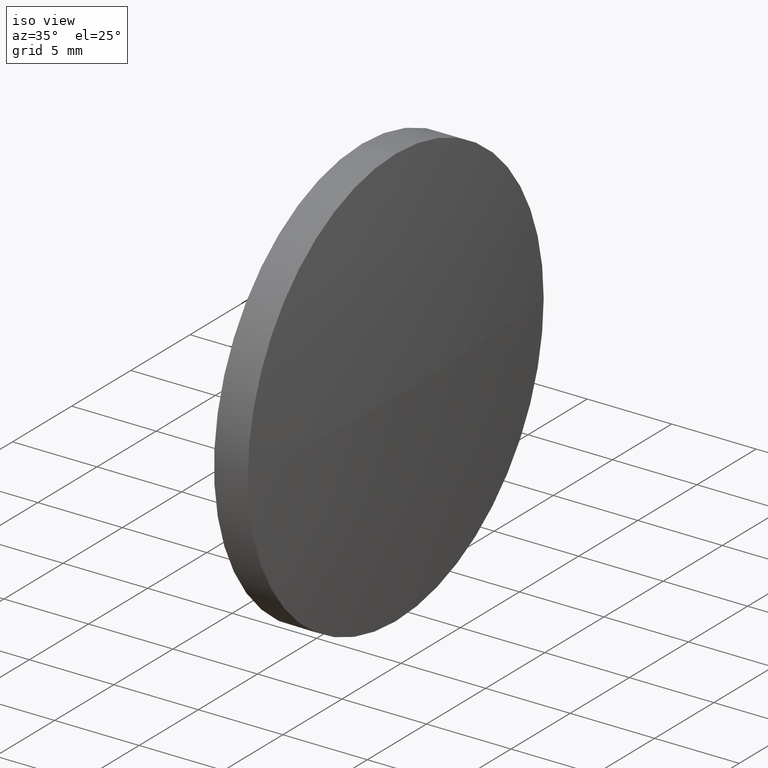
[diagram: clean part render]
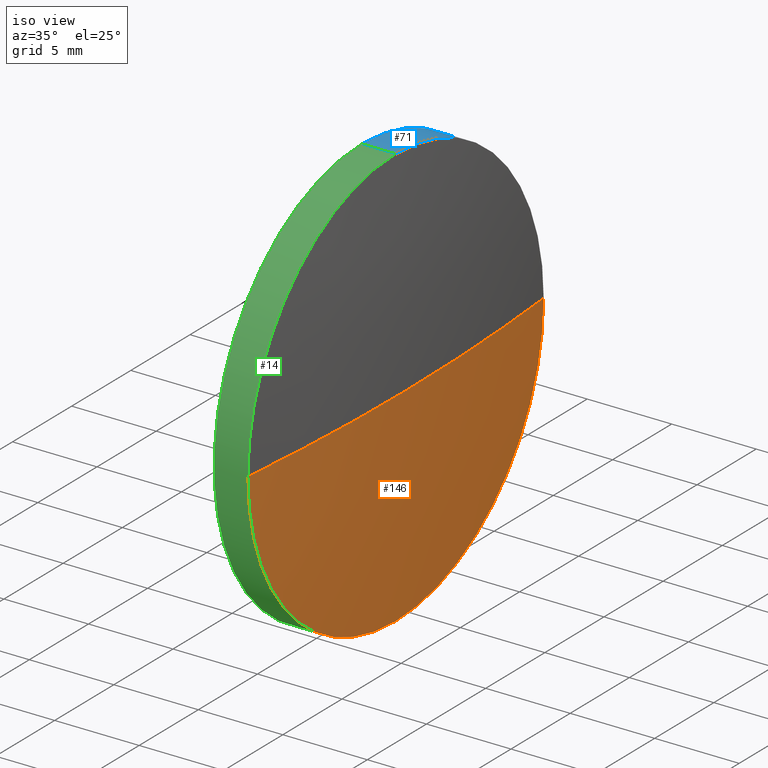
[diagram: same view with three faces highlighted in distinct colors, each labeled with its STEP entity id]
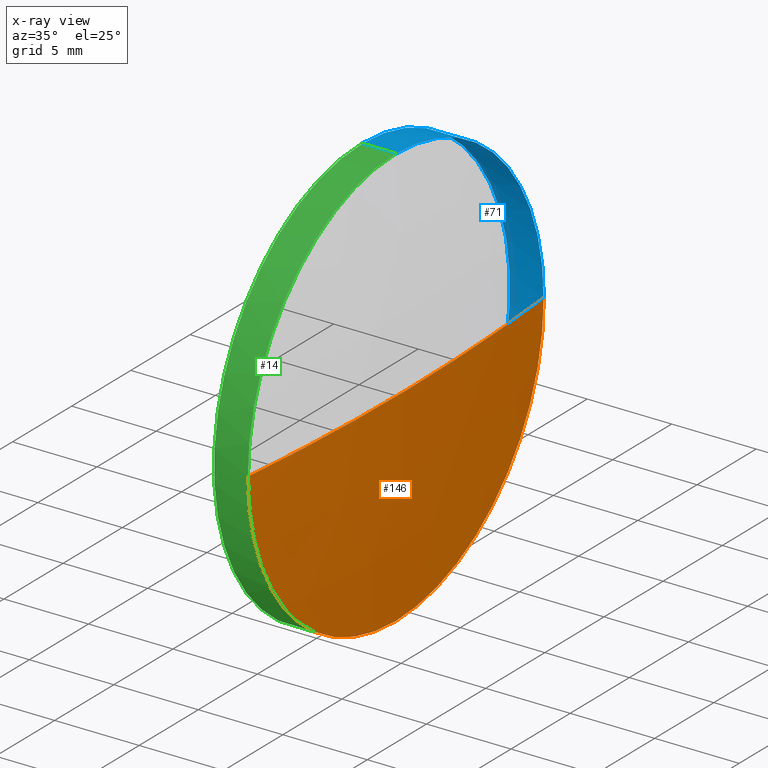
[diagram: x-ray of the same camera — body ghosted, the three highlighted faces saturated]
A machine part, iso view with three faces highlighted in distinct colors.
The next image is the same camera in x-ray (body ghosted, the three faces saturated) — at least one of them is partly hidden behind the body in this view.
Their STEP definitions:

[orange] entity #146 — the highlighted spherical surface has radius 128.379 mm.
#4 = VERTEX_POINT ( 'NONE', #147 ) ;
#5 = CARTESIAN_POINT ( 'NONE',  ( 432.6734626565939800, 55.36771829137188700, -1.530808498934185000E-015 ) ) ;
#9 = AXIS2_PLACEMENT_3D ( 'NONE', #70, #13, #59 ) ;
#11 = CIRCLE ( 'NONE', #161, 12.49999999999999600 ) ;
#13 = DIRECTION ( 'NONE',  ( 0.0000000000000000000, 1.224646799147353200E-016, -1.000000000000000000 ) ) ;
#17 = CARTESIAN_POINT ( 'NONE',  ( 432.6734626565939800, 67.86771829137194300, 0.0000000000000000000 ) ) ;
#22 = ORIENTED_EDGE ( 'NONE', *, *, #49, .T. ) ;
#27 = EDGE_LOOP ( 'NONE', ( #157, #22, #143, #37 ) ) ;
#28 = CARTESIAN_POINT ( 'NONE',  ( 433.2834626565940000, 67.86771829137184400, 0.0000000000000000000 ) ) ;
#32 = VERTEX_POINT ( 'NONE', #28 ) ;
#36 = DIRECTION ( 'NONE',  ( -1.000000000000000000, -0.0000000000000000000, -0.0000000000000000000 ) ) ;
#37 = ORIENTED_EDGE ( 'NONE', *, *, #163, .F. ) ;
#38 = SPHERICAL_SURFACE ( 'NONE', #148, 128.3787704918034600 ) ;
#41 = EDGE_CURVE ( 'NONE', #32, #4, #94, .T. ) ;
#49 = EDGE_CURVE ( 'NONE', #32, #118, #104, .T. ) ;
#53 = CIRCLE ( 'NONE', #55, 12.49999999999999600 ) ;
#55 = AXIS2_PLACEMENT_3D ( 'NONE', #17, #36, #64 ) ;
#59 = DIRECTION ( 'NONE',  ( 0.0000000000000000000, 1.000000000000000000, 1.224646799147353200E-016 ) ) ;
#64 = DIRECTION ( 'NONE',  ( 0.0000000000000000000, 0.0000000000000000000, 1.000000000000000000 ) ) ;
#67 = EDGE_CURVE ( 'NONE', #122, #118, #11, .T. ) ;
#70 = CARTESIAN_POINT ( 'NONE',  ( 304.9046921647905600, 67.86771829137183000, 0.0000000000000000000 ) ) ;
#72 = DIRECTION ( 'NONE',  ( 0.0000000000000000000, 1.000000000000000000, 0.0000000000000000000 ) ) ;
#73 = DIRECTION ( 'NONE',  ( -1.000000000000000000, -0.0000000000000000000, -0.0000000000000000000 ) ) ;
#76 = AXIS2_PLACEMENT_3D ( 'NONE', #109, #108, #144 ) ;
#94 = CIRCLE ( 'NONE', #76, 128.3787704918034600 ) ;
#99 = CARTESIAN_POINT ( 'NONE',  ( 432.6734626565939800, 67.86771829137194300, 0.0000000000000000000 ) ) ;
#104 = CIRCLE ( 'NONE', #9, 128.3787704918034600 ) ;
#108 = DIRECTION ( 'NONE',  ( -0.0000000000000000000, 0.0000000000000000000, 1.000000000000000000 ) ) ;
#109 = CARTESIAN_POINT ( 'NONE',  ( 304.9046921647905600, 67.86771829137183000, 0.0000000000000000000 ) ) ;
#111 = DIRECTION ( 'NONE',  ( -0.0000000000000000000, 0.0000000000000000000, -1.000000000000000000 ) ) ;
#118 = VERTEX_POINT ( 'NONE', #5 ) ;
#122 = VERTEX_POINT ( 'NONE', #178 ) ;
#143 = ORIENTED_EDGE ( 'NONE', *, *, #67, .F. ) ;
#144 = DIRECTION ( 'NONE',  ( 1.000000000000000000, 0.0000000000000000000, 0.0000000000000000000 ) ) ;
#146 = ADVANCED_FACE ( 'NONE', ( #159 ), #38, .T. ) ;
#147 = CARTESIAN_POINT ( 'NONE',  ( 432.6734626565939800, 80.36771829137190100, 0.0000000000000000000 ) ) ;
#148 = AXIS2_PLACEMENT_3D ( 'NONE', #158, #111, #72 ) ;
#157 = ORIENTED_EDGE ( 'NONE', *, *, #41, .F. ) ;
#158 = CARTESIAN_POINT ( 'NONE',  ( 304.9046921647905600, 67.86771829137183000, 0.0000000000000000000 ) ) ;
#159 = FACE_OUTER_BOUND ( 'NONE', #27, .T. ) ;
#161 = AXIS2_PLACEMENT_3D ( 'NONE', #99, #73, #176 ) ;
#163 = EDGE_CURVE ( 'NONE', #4, #122, #53, .T. ) ;
#176 = DIRECTION ( 'NONE',  ( 0.0000000000000000000, 0.0000000000000000000, 1.000000000000000000 ) ) ;
#178 = CARTESIAN_POINT ( 'NONE',  ( 432.6734626565939800, 67.86771829137194300, -12.49999999999999600 ) ) ;

[blue] entity #71 — the highlighted cylindrical surface (partial cylindrical patch) has radius 12.5 mm, axis along (-1, -0, -0).
#1 = DIRECTION ( 'NONE',  ( -1.000000000000000000, -0.0000000000000000000, -0.0000000000000000000 ) ) ;
#4 = VERTEX_POINT ( 'NONE', #147 ) ;
#8 = EDGE_LOOP ( 'NONE', ( #62, #90, #150, #166, #78 ) ) ;
#17 = CARTESIAN_POINT ( 'NONE',  ( 432.6734626565939800, 67.86771829137194300, 0.0000000000000000000 ) ) ;
#18 = DIRECTION ( 'NONE',  ( -1.000000000000000000, -0.0000000000000000000, -0.0000000000000000000 ) ) ;
#19 = AXIS2_PLACEMENT_3D ( 'NONE', #117, #1, #86 ) ;
#26 = LINE ( 'NONE', #46, #56 ) ;
#35 = DIRECTION ( 'NONE',  ( 0.0000000000000000000, 0.0000000000000000000, 1.000000000000000000 ) ) ;
#36 = DIRECTION ( 'NONE',  ( -1.000000000000000000, -0.0000000000000000000, -0.0000000000000000000 ) ) ;
#40 = CYLINDRICAL_SURFACE ( 'NONE', #75, 12.49999999999999600 ) ;
#46 = CARTESIAN_POINT ( 'NONE',  ( 428.3078467538330200, 67.86771829137194300, -12.49999999999999600 ) ) ;
#50 = AXIS2_PLACEMENT_3D ( 'NONE', #100, #115, #35 ) ;
#53 = CIRCLE ( 'NONE', #55, 12.49999999999999600 ) ;
#55 = AXIS2_PLACEMENT_3D ( 'NONE', #17, #36, #64 ) ;
#56 = VECTOR ( 'NONE', #83, 1000.000000000000000 ) ;
#62 = ORIENTED_EDGE ( 'NONE', *, *, #163, .T. ) ;
#63 = CARTESIAN_POINT ( 'NONE',  ( 430.6734626565939800, 67.86771829137194300, 12.49999999999999600 ) ) ;
#64 = DIRECTION ( 'NONE',  ( 0.0000000000000000000, 0.0000000000000000000, 1.000000000000000000 ) ) ;
#69 = VERTEX_POINT ( 'NONE', #172 ) ;
#71 = ADVANCED_FACE ( 'NONE', ( #180 ), #40, .T. ) ;
#75 = AXIS2_PLACEMENT_3D ( 'NONE', #134, #18, #116 ) ;
#78 = ORIENTED_EDGE ( 'NONE', *, *, #98, .T. ) ;
#83 = DIRECTION ( 'NONE',  ( -1.000000000000000000, -0.0000000000000000000, -0.0000000000000000000 ) ) ;
#86 = DIRECTION ( 'NONE',  ( 0.0000000000000000000, 0.0000000000000000000, 1.000000000000000000 ) ) ;
#90 = ORIENTED_EDGE ( 'NONE', *, *, #110, .T. ) ;
#92 = CIRCLE ( 'NONE', #19, 12.49999999999999600 ) ;
#97 = CARTESIAN_POINT ( 'NONE',  ( 430.6734626565939800, 67.86771829137194300, -12.49999999999999600 ) ) ;
#98 = EDGE_CURVE ( 'NONE', #69, #4, #169, .T. ) ;
#100 = CARTESIAN_POINT ( 'NONE',  ( 432.6734626565939800, 67.86771829137194300, 0.0000000000000000000 ) ) ;
#103 = VERTEX_POINT ( 'NONE', #63 ) ;
#110 = EDGE_CURVE ( 'NONE', #122, #137, #26, .T. ) ;
#113 = DIRECTION ( 'NONE',  ( -1.000000000000000000, -0.0000000000000000000, -0.0000000000000000000 ) ) ;
#115 = DIRECTION ( 'NONE',  ( -1.000000000000000000, -0.0000000000000000000, -0.0000000000000000000 ) ) ;
#116 = DIRECTION ( 'NONE',  ( 0.0000000000000000000, 0.0000000000000000000, 1.000000000000000000 ) ) ;
#117 = CARTESIAN_POINT ( 'NONE',  ( 430.6734626565939800, 67.86771829137194300, 0.0000000000000000000 ) ) ;
#119 = CARTESIAN_POINT ( 'NONE',  ( 428.3078467538330200, 67.86771829137194300, 12.49999999999999600 ) ) ;
#122 = VERTEX_POINT ( 'NONE', #178 ) ;
#126 = EDGE_CURVE ( 'NONE', #69, #103, #139, .T. ) ;
#134 = CARTESIAN_POINT ( 'NONE',  ( 428.3078467538330200, 67.86771829137194300, 0.0000000000000000000 ) ) ;
#137 = VERTEX_POINT ( 'NONE', #97 ) ;
#139 = LINE ( 'NONE', #119, #160 ) ;
#147 = CARTESIAN_POINT ( 'NONE',  ( 432.6734626565939800, 80.36771829137190100, 0.0000000000000000000 ) ) ;
#150 = ORIENTED_EDGE ( 'NONE', *, *, #174, .F. ) ;
#160 = VECTOR ( 'NONE', #113, 1000.000000000000000 ) ;
#163 = EDGE_CURVE ( 'NONE', #4, #122, #53, .T. ) ;
#166 = ORIENTED_EDGE ( 'NONE', *, *, #126, .F. ) ;
#169 = CIRCLE ( 'NONE', #50, 12.49999999999999600 ) ;
#172 = CARTESIAN_POINT ( 'NONE',  ( 432.6734626565939800, 67.86771829137194300, 12.49999999999999600 ) ) ;
#174 = EDGE_CURVE ( 'NONE', #103, #137, #92, .T. ) ;
#178 = CARTESIAN_POINT ( 'NONE',  ( 432.6734626565939800, 67.86771829137194300, -12.49999999999999600 ) ) ;
#180 = FACE_OUTER_BOUND ( 'NONE', #8, .T. ) ;

[green] entity #14 — the highlighted cylindrical surface (partial cylindrical patch) has radius 12.5 mm, axis along (-1, -0, -0).
#5 = CARTESIAN_POINT ( 'NONE',  ( 432.6734626565939800, 55.36771829137188700, -1.530808498934185000E-015 ) ) ;
#11 = CIRCLE ( 'NONE', #161, 12.49999999999999600 ) ;
#14 = ADVANCED_FACE ( 'NONE', ( #140 ), #183, .T. ) ;
#16 = EDGE_CURVE ( 'NONE', #118, #69, #74, .T. ) ;
#26 = LINE ( 'NONE', #46, #56 ) ;
#33 = DIRECTION ( 'NONE',  ( 0.0000000000000000000, 0.0000000000000000000, 1.000000000000000000 ) ) ;
#44 = AXIS2_PLACEMENT_3D ( 'NONE', #60, #128, #45 ) ;
#45 = DIRECTION ( 'NONE',  ( 0.0000000000000000000, 0.0000000000000000000, 1.000000000000000000 ) ) ;
#46 = CARTESIAN_POINT ( 'NONE',  ( 428.3078467538330200, 67.86771829137194300, -12.49999999999999600 ) ) ;
#54 = EDGE_CURVE ( 'NONE', #137, #103, #133, .T. ) ;
#56 = VECTOR ( 'NONE', #83, 1000.000000000000000 ) ;
#60 = CARTESIAN_POINT ( 'NONE',  ( 430.6734626565939800, 67.86771829137194300, 0.0000000000000000000 ) ) ;
#61 = DIRECTION ( 'NONE',  ( 0.0000000000000000000, 0.0000000000000000000, 1.000000000000000000 ) ) ;
#63 = CARTESIAN_POINT ( 'NONE',  ( 430.6734626565939800, 67.86771829137194300, 12.49999999999999600 ) ) ;
#67 = EDGE_CURVE ( 'NONE', #122, #118, #11, .T. ) ;
#69 = VERTEX_POINT ( 'NONE', #172 ) ;
#73 = DIRECTION ( 'NONE',  ( -1.000000000000000000, -0.0000000000000000000, -0.0000000000000000000 ) ) ;
#74 = CIRCLE ( 'NONE', #106, 12.49999999999999600 ) ;
#81 = CARTESIAN_POINT ( 'NONE',  ( 428.3078467538330200, 67.86771829137194300, 0.0000000000000000000 ) ) ;
#82 = ORIENTED_EDGE ( 'NONE', *, *, #67, .T. ) ;
#83 = DIRECTION ( 'NONE',  ( -1.000000000000000000, -0.0000000000000000000, -0.0000000000000000000 ) ) ;
#87 = ORIENTED_EDGE ( 'NONE', *, *, #110, .F. ) ;
#95 = DIRECTION ( 'NONE',  ( -1.000000000000000000, -0.0000000000000000000, -0.0000000000000000000 ) ) ;
#97 = CARTESIAN_POINT ( 'NONE',  ( 430.6734626565939800, 67.86771829137194300, -12.49999999999999600 ) ) ;
#99 = CARTESIAN_POINT ( 'NONE',  ( 432.6734626565939800, 67.86771829137194300, 0.0000000000000000000 ) ) ;
#103 = VERTEX_POINT ( 'NONE', #63 ) ;
#105 = ORIENTED_EDGE ( 'NONE', *, *, #126, .T. ) ;
#106 = AXIS2_PLACEMENT_3D ( 'NONE', #185, #95, #61 ) ;
#110 = EDGE_CURVE ( 'NONE', #122, #137, #26, .T. ) ;
#112 = DIRECTION ( 'NONE',  ( -1.000000000000000000, -0.0000000000000000000, -0.0000000000000000000 ) ) ;
#113 = DIRECTION ( 'NONE',  ( -1.000000000000000000, -0.0000000000000000000, -0.0000000000000000000 ) ) ;
#118 = VERTEX_POINT ( 'NONE', #5 ) ;
#119 = CARTESIAN_POINT ( 'NONE',  ( 428.3078467538330200, 67.86771829137194300, 12.49999999999999600 ) ) ;
#120 = AXIS2_PLACEMENT_3D ( 'NONE', #81, #112, #33 ) ;
#122 = VERTEX_POINT ( 'NONE', #178 ) ;
#125 = ORIENTED_EDGE ( 'NONE', *, *, #54, .F. ) ;
#126 = EDGE_CURVE ( 'NONE', #69, #103, #139, .T. ) ;
#128 = DIRECTION ( 'NONE',  ( -1.000000000000000000, -0.0000000000000000000, -0.0000000000000000000 ) ) ;
#133 = CIRCLE ( 'NONE', #44, 12.49999999999999600 ) ;
#135 = ORIENTED_EDGE ( 'NONE', *, *, #16, .T. ) ;
#137 = VERTEX_POINT ( 'NONE', #97 ) ;
#139 = LINE ( 'NONE', #119, #160 ) ;
#140 = FACE_OUTER_BOUND ( 'NONE', #142, .T. ) ;
#142 = EDGE_LOOP ( 'NONE', ( #87, #82, #135, #105, #125 ) ) ;
#160 = VECTOR ( 'NONE', #113, 1000.000000000000000 ) ;
#161 = AXIS2_PLACEMENT_3D ( 'NONE', #99, #73, #176 ) ;
#172 = CARTESIAN_POINT ( 'NONE',  ( 432.6734626565939800, 67.86771829137194300, 12.49999999999999600 ) ) ;
#176 = DIRECTION ( 'NONE',  ( 0.0000000000000000000, 0.0000000000000000000, 1.000000000000000000 ) ) ;
#178 = CARTESIAN_POINT ( 'NONE',  ( 432.6734626565939800, 67.86771829137194300, -12.49999999999999600 ) ) ;
#183 = CYLINDRICAL_SURFACE ( 'NONE', #120, 12.49999999999999600 ) ;
#185 = CARTESIAN_POINT ( 'NONE',  ( 432.6734626565939800, 67.86771829137194300, 0.0000000000000000000 ) ) ;